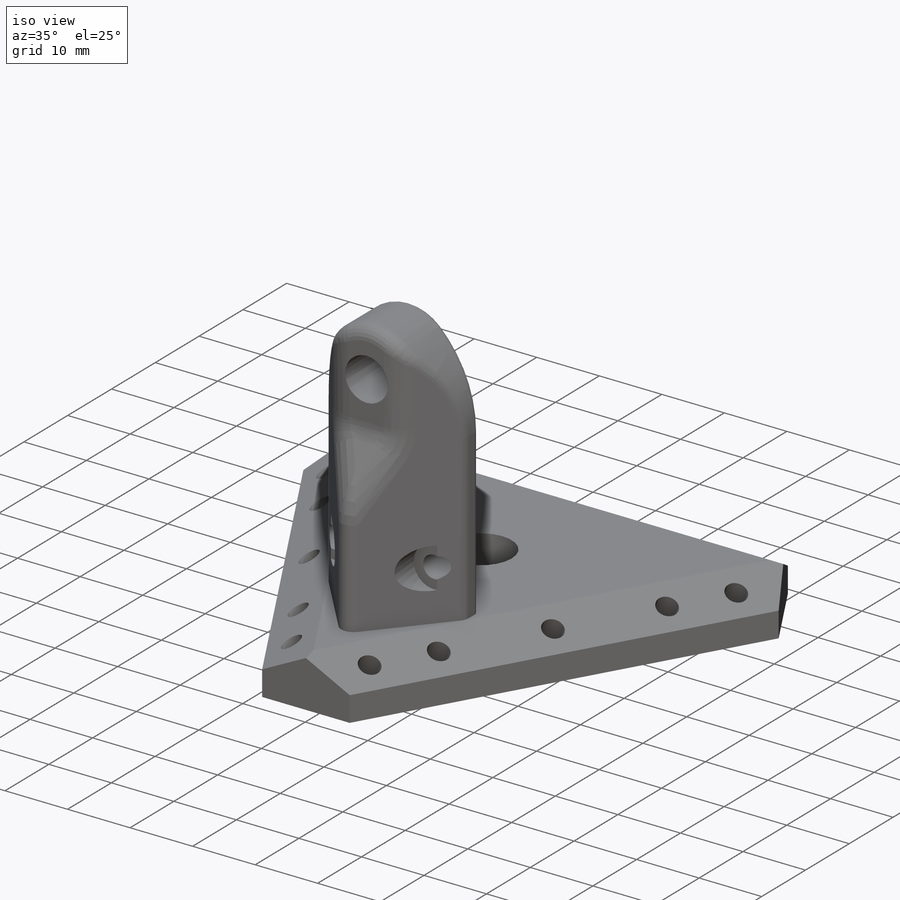
[diagram: iso view]
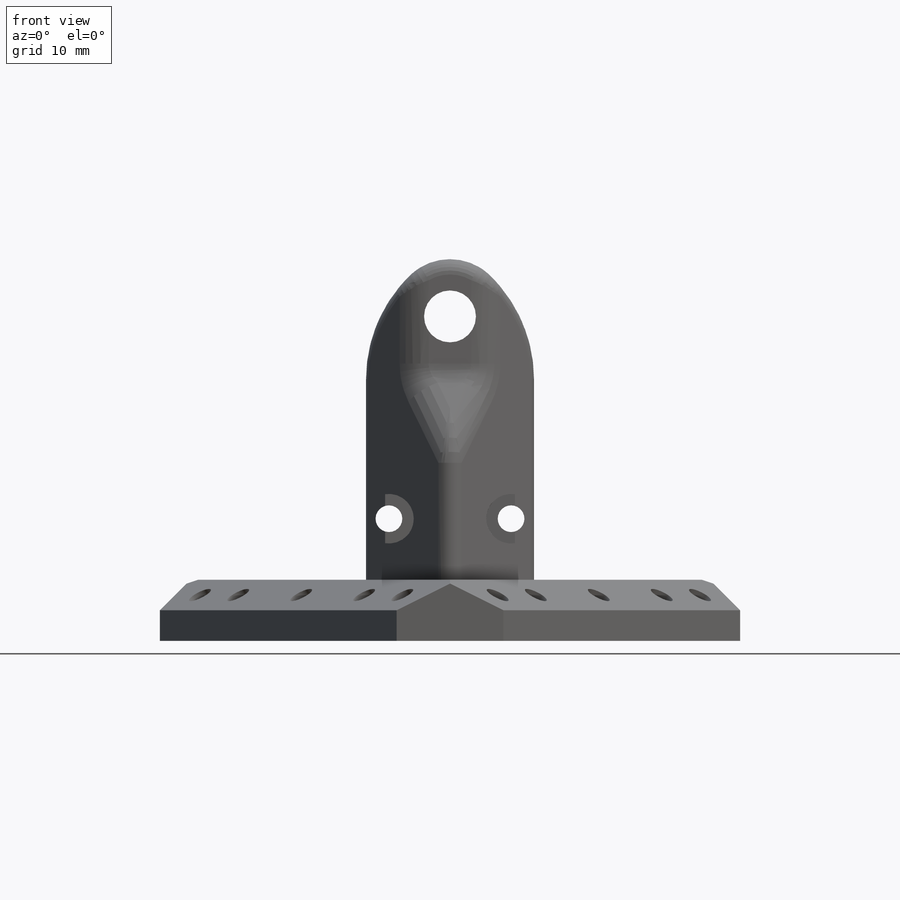
[diagram: front view]
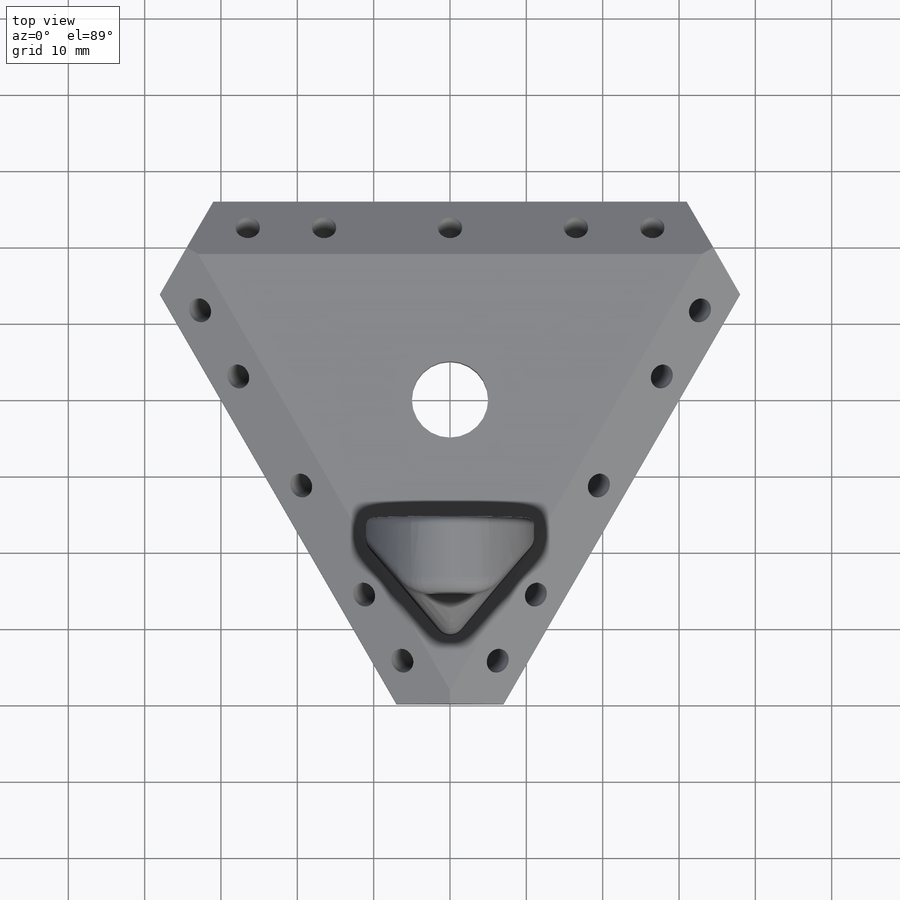
[diagram: top view]
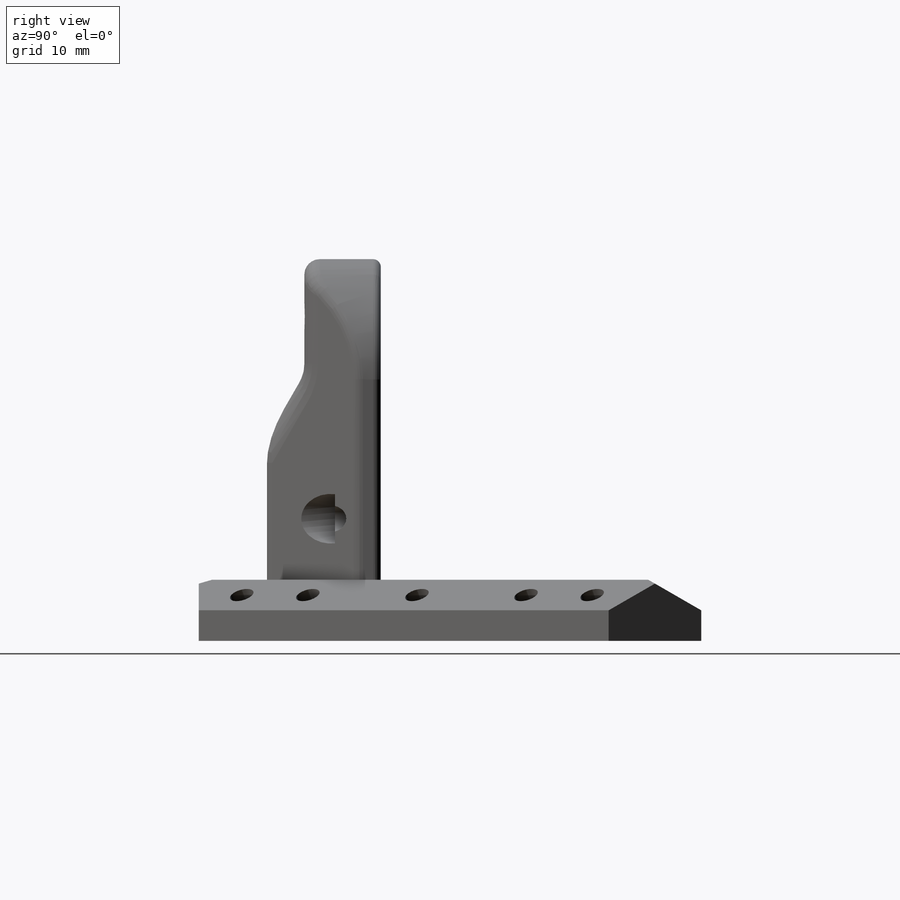
[diagram: right view]
SOLIDWORKS PART (.sldprt)
format: sldprt  version: not decoded by parser v0  size: 516,608 bytes
history: native  units: mm
features: sketch x11, cut_extrude x8, fillet x4, extrude x2, material x1, chamfer x1, pattern_circular x1 (+13 scaffold rows collapsed)
feature tree (41):
  scaffold x13  (default folders/planes/origin — collapsed)
  material  "Material <not specified>"
  sketch  "Sketch1"  dims[c1.D4=~5.779765mm c1.D6=4.3mm c1.D8=4.0mm c1.D1=~45.309345mm c2.D1=120.0deg c2.D2=~46.342002mm c3.D2=120.0deg c4.D2=60.0mm c4.D3=14.0mm c4.D4=65.0mm c4.D5=45.0mm c4.D6=10.0mm c5.D4=50.0mm c5.D5=26.0mm c5.D6=24.0mm c6.D5=25.5mm c6.D7=62.0mm c6.D2=7.0mm c6.D1=~12.124356mm c7.D1=120.0deg c7.D2=7.0mm c8.D2=120.0deg]
  extrude  "Boss-Extrude1"  Depth=8mm
  chamfer  "Chamfer1"  Distance=4mm Angle=60deg
  sketch  "Sketch2"  dims[c1.D1=3.2mm c1.D3=3.2mm c1.D4=3.2mm c1.D5=3.2mm c1.D6=10.0mm c1.D2=53.0mm c2.D3=10.0mm c2.D4=10.0mm c2.D5=33.0mm]
  cut_extrude  "Cut-Extrude1"  [1 undecoded]
  sketch  "Sketch3"  dims[D1=6.0mm]
  cut_extrude  "Cut-Extrude2"  Depth=6mm
  pattern_circular  "CirPattern1"  Count=3 Angle=120deg
  sketch  "Sketch6"  dims[D1=30.0mm]
  cut_extrude  "Cut-Extrude3"  [1 undecoded]
  sketch  "Sketch7"  dims[D1=22.0mm D2=27.0mm D3=~14.505006mm]
  sketch  "Sketch8"  dims[D1=16.0mm D2=~3.052559mm]
  extrude  "Boss-Extrude2"  Depth=64mm
  sketch  "Sketch9"  dims[c1.D1=3.3mm c1.D2=3.2mm c1.D4=6.8mm c1.D5=6.5mm c2.D1=3.5mm c2.D2=16.0mm c2.D3=59.0mm c2.D5=29.5mm]
  cut_extrude  "Cut-Extrude4"  [1 undecoded]
  sketch  "Sketch10"  dims[D1=6.5mm]
  cut_extrude  "Cut-Extrude7"  Depth=6mm
  sketch  "Sketch11"  dims[D1=15.0mm]
  cut_extrude  "Cut-Extrude8"  Depth=10mm
  sketch  "Sketch13"
  cut_extrude  "Cut-Extrude9"  [1 undecoded]
  fillet  "Fillet4"  Radius=19mm
  sketch  "Sketch14"  dims[c1.D1=~9.960128mm c2.D1=30.0deg c3.D1=~10.392305mm c4.D1=30.0deg]
  cut_extrude  "Cut-Extrude10"  [1 undecoded]
  fillet  "Fillet6"  Radius=5mm
  fillet  "Fillet7"  Radius=2mm
  fillet  "Fillet8"  Radius=1mm
decode coverage: 21 of 27 modeling features carry decoded parameters
note: ~ marks probable driven/reference dimensions
note: 5 parameter values undecoded
summary: no parameter record found for 5 features
note: suppression state not decoded; provenance and decode notes live in map.json
